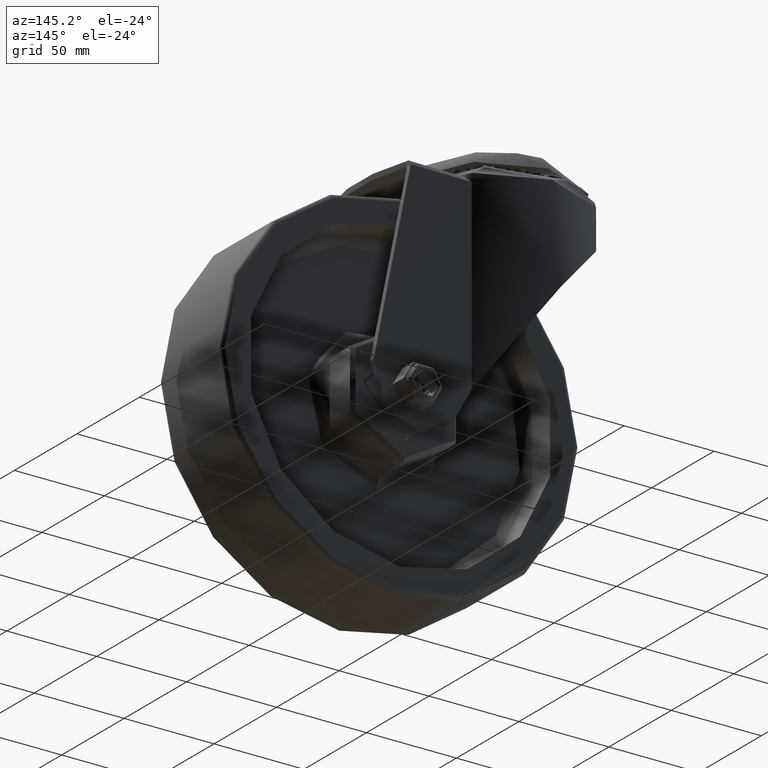
[diagram: clean part render]
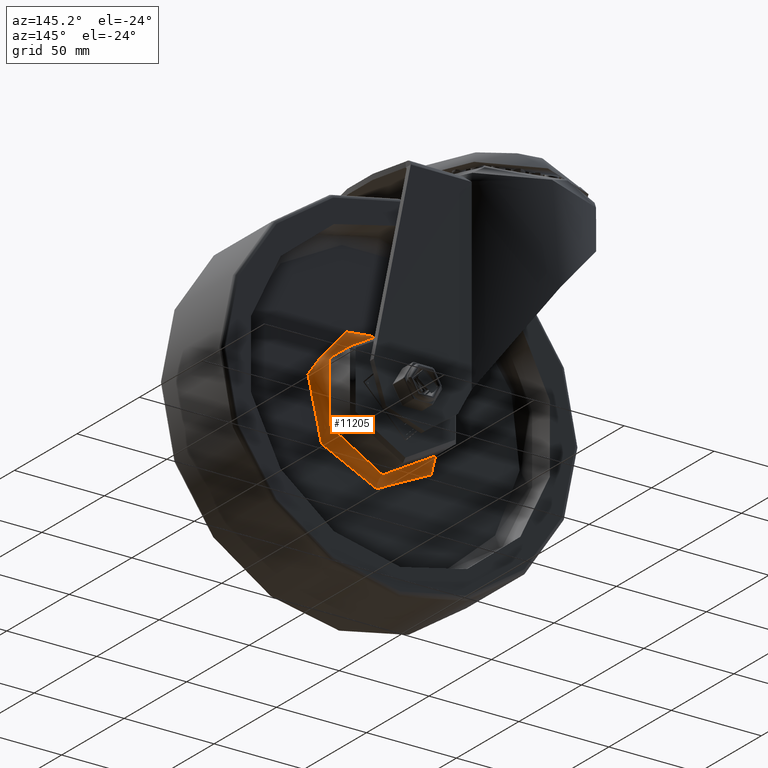
[diagram: same view with one face highlighted and labeled with its STEP entity id]
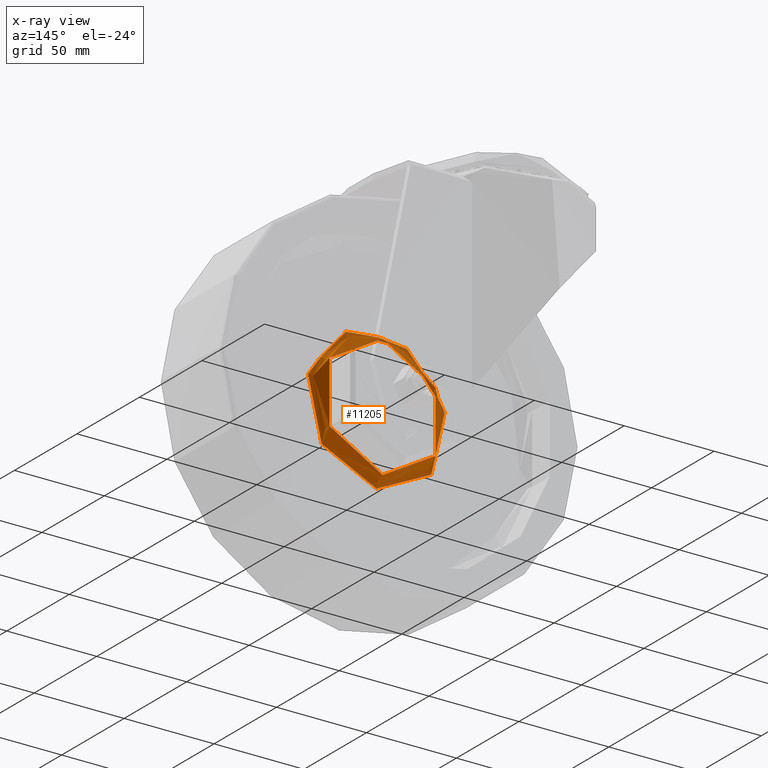
[diagram: x-ray of the same camera — body ghosted, the highlighted face saturated]
A machine part, auxiliary view. The second image highlights one B-rep face of the part: STEP entity #11205.
The next image is the same camera in x-ray: the body ghosted, the highlighted face saturated — about 7% of this face is hidden behind the body in this view.
In plain terms, the highlighted toroidal blend (fillet) surface has major radius 39 mm and minor (blend) radius 5 mm.
Its self-contained STEP definition (entity closure, byte-faithful):
#1662=TOROIDAL_SURFACE('',#12120,39.,5.);
#1697=FACE_OUTER_BOUND('',#2382,.T.);
#2382=EDGE_LOOP('',(#7806,#7807,#7808,#7809));
#4640=CIRCLE('',#12119,34.);
#4641=CIRCLE('',#12121,5.);
#4642=CIRCLE('',#12122,39.);
#5039=VERTEX_POINT('',#15962);
#5040=VERTEX_POINT('',#15966);
#6140=EDGE_CURVE('',#5039,#5039,#4640,.T.);
#6141=EDGE_CURVE('',#5039,#5040,#4641,.T.);
#6142=EDGE_CURVE('',#5040,#5040,#4642,.T.);
#7806=ORIENTED_EDGE('',*,*,#6140,.F.);
#7807=ORIENTED_EDGE('',*,*,#6141,.T.);
#7808=ORIENTED_EDGE('',*,*,#6142,.T.);
#7809=ORIENTED_EDGE('',*,*,#6141,.F.);
#11205=ADVANCED_FACE('',(#1697),#1662,.F.);
#12119=AXIS2_PLACEMENT_3D('',#15964,#13195,#13196);
#12120=AXIS2_PLACEMENT_3D('',#15965,#13197,#13198);
#12121=AXIS2_PLACEMENT_3D('',#15967,#13199,#13200);
#12122=AXIS2_PLACEMENT_3D('',#15968,#13201,#13202);
#13195=DIRECTION('center_axis',(0.,1.,0.));
#13196=DIRECTION('ref_axis',(0.,0.,1.));
#13197=DIRECTION('center_axis',(0.,1.,0.));
#13198=DIRECTION('ref_axis',(0.,0.,1.));
#13199=DIRECTION('center_axis',(1.,0.,-1.22464679914735E-16));
#13200=DIRECTION('ref_axis',(-1.22464679914735E-16,0.,-1.));
#13201=DIRECTION('center_axis',(0.,1.,0.));
#13202=DIRECTION('ref_axis',(0.,0.,1.));
#15962=CARTESIAN_POINT('',(4.163799117101E-15,10.75,-34.));
#15964=CARTESIAN_POINT('Origin',(0.,10.75,0.));
#15965=CARTESIAN_POINT('Origin',(0.,10.75,0.));
#15966=CARTESIAN_POINT('',(-4.77612251667468E-15,5.75,-39.));
#15967=CARTESIAN_POINT('Origin',(-4.77612251667468E-15,10.75,-39.));
#15968=CARTESIAN_POINT('Origin',(0.,5.75,0.));